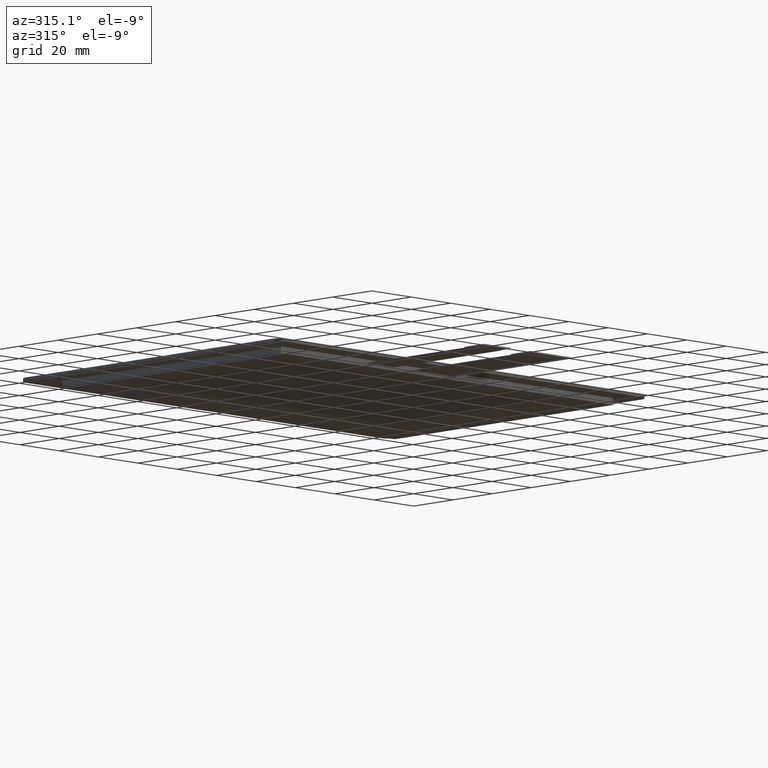
[diagram: clean part render]
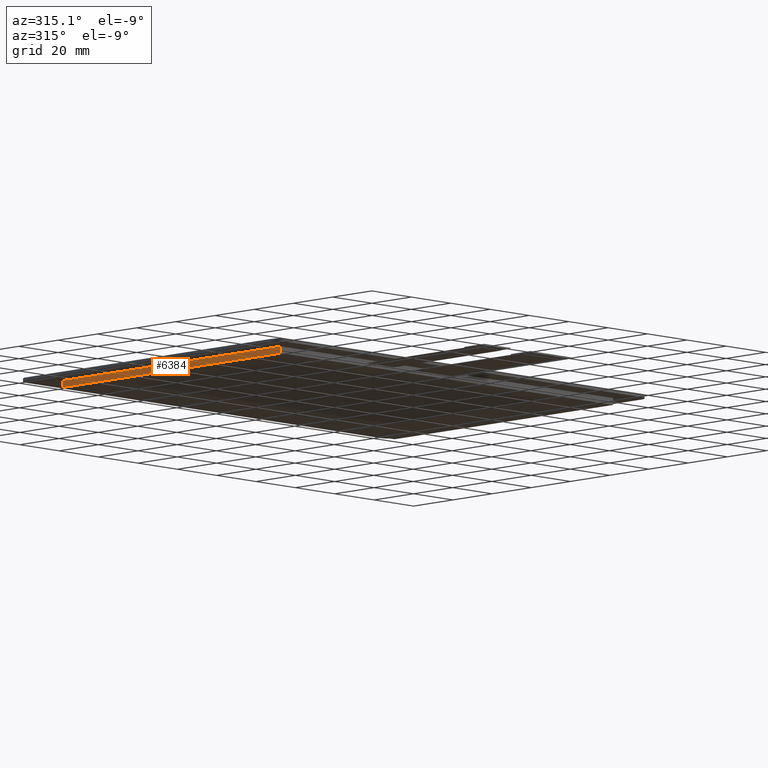
[diagram: same view with one face highlighted and labeled with its STEP entity id]
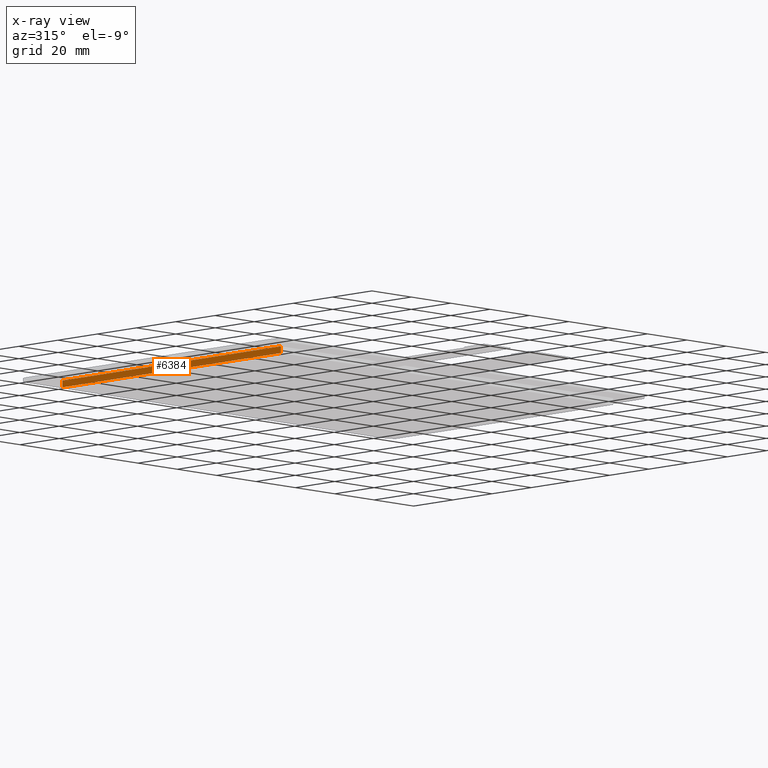
[diagram: x-ray of the same camera — body ghosted, the highlighted face saturated]
A machine part, auxiliary view. The second image highlights one B-rep face of the part: STEP entity #6384.
The next image is the same camera in x-ray: the body ghosted, the highlighted face saturated — about 0% of this face is hidden behind the body in this view.
In plain terms, the highlighted planar face has unit normal (-1, -0, 0).
Its self-contained STEP definition (entity closure, byte-faithful):
#340=FACE_OUTER_BOUND('',#650,.T.);
#650=EDGE_LOOP('',(#5719,#5720,#5721,#5722));
#678=LINE('',#8329,#1566);
#1531=LINE('',#10055,#2419);
#1532=LINE('',#10057,#2420);
#1533=LINE('',#10058,#2421);
#1566=VECTOR('',#6782,10.);
#2419=VECTOR('',#8239,10.);
#2420=VECTOR('',#8240,10.);
#2421=VECTOR('',#8241,10.);
#2475=VERTEX_POINT('',#8327);
#2476=VERTEX_POINT('',#8328);
#3047=VERTEX_POINT('',#10054);
#3048=VERTEX_POINT('',#10056);
#3082=EDGE_CURVE('',#2475,#2476,#678,.T.);
#3943=EDGE_CURVE('',#2475,#3047,#1531,.T.);
#3944=EDGE_CURVE('',#3048,#3047,#1532,.T.);
#3945=EDGE_CURVE('',#2476,#3048,#1533,.T.);
#5719=ORIENTED_EDGE('',*,*,#3082,.F.);
#5720=ORIENTED_EDGE('',*,*,#3943,.T.);
#5721=ORIENTED_EDGE('',*,*,#3944,.F.);
#5722=ORIENTED_EDGE('',*,*,#3945,.F.);
#6060=PLANE('',#6730);
#6384=ADVANCED_FACE('',(#340),#6060,.T.);
#6730=AXIS2_PLACEMENT_3D('',#10053,#8237,#8238);
#6782=DIRECTION('',(1.59457525978478E-16,-1.,0.));
#8237=DIRECTION('center_axis',(-1.,-1.59457525978478E-16,0.));
#8238=DIRECTION('ref_axis',(-1.59457525978478E-16,1.,0.));
#8239=DIRECTION('',(0.,0.,-1.));
#8240=DIRECTION('',(-1.59457525978478E-16,1.,0.));
#8241=DIRECTION('',(0.,0.,-1.));
#8327=CARTESIAN_POINT('',(-84.5,53.68,0.));
#8328=CARTESIAN_POINT('',(-84.5,-57.72,0.));
#8329=CARTESIAN_POINT('',(-84.5,53.68,0.));
#10053=CARTESIAN_POINT('Origin',(-84.5,-57.72,0.));
#10054=CARTESIAN_POINT('',(-84.5,53.68,-2.5));
#10055=CARTESIAN_POINT('',(-84.5,53.68,0.));
#10056=CARTESIAN_POINT('',(-84.5,-57.72,-2.5));
#10057=CARTESIAN_POINT('',(-84.5,53.68,-2.5));
#10058=CARTESIAN_POINT('',(-84.5,-57.72,0.));